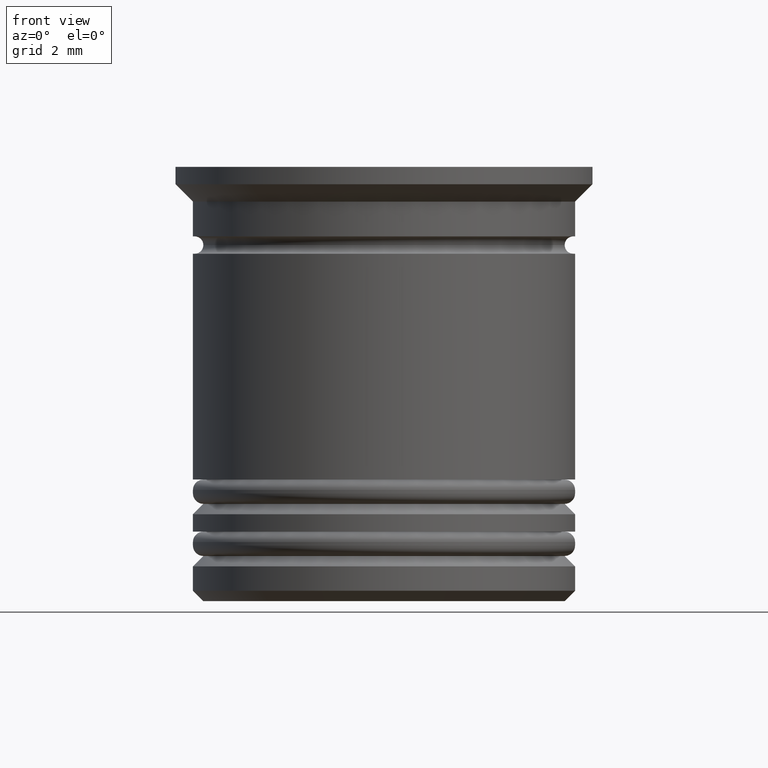
[diagram: clean part render]
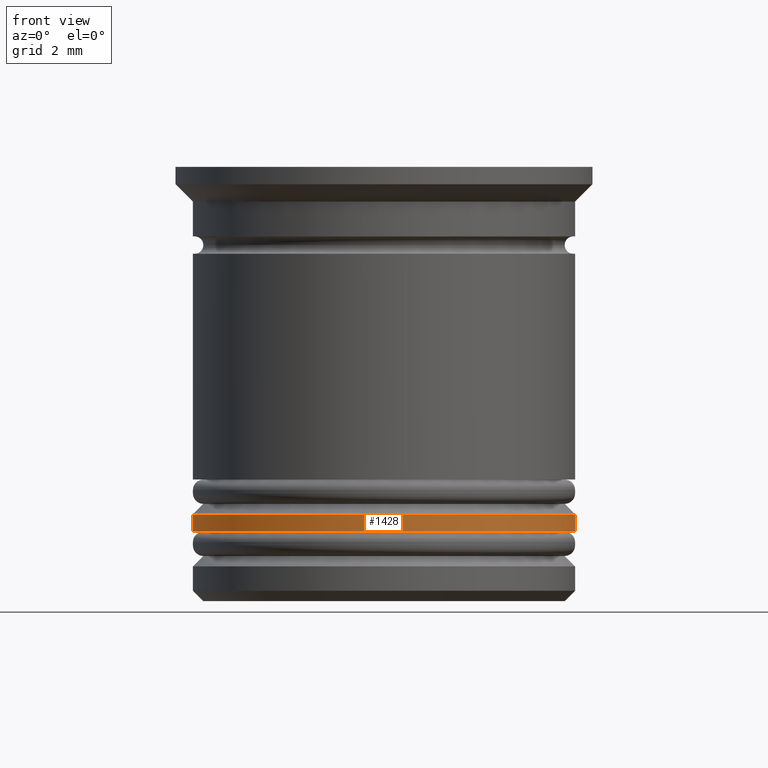
[diagram: same view with one face highlighted and labeled with its STEP entity id]
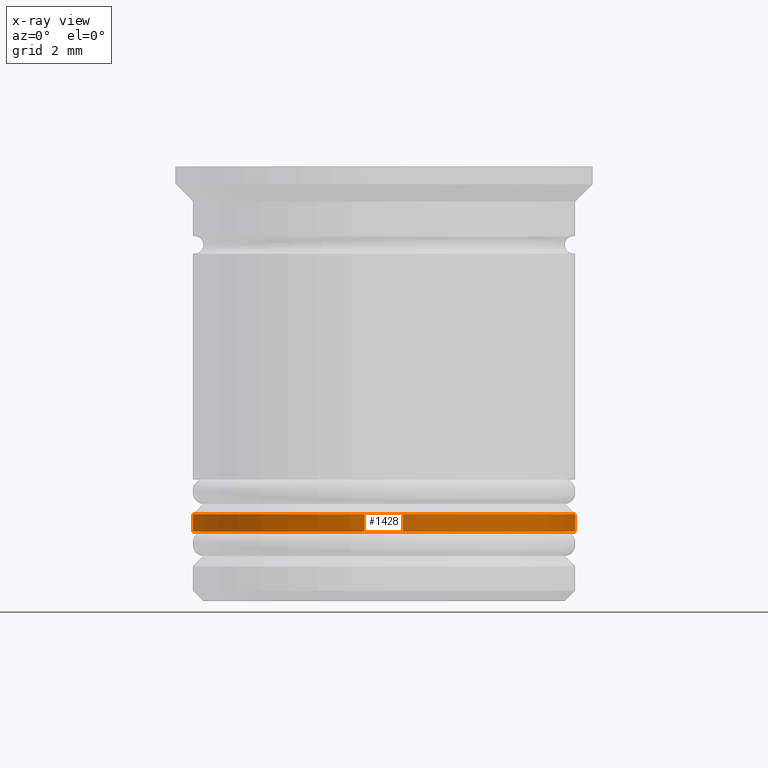
[diagram: x-ray of the same camera — body ghosted, the highlighted face saturated]
A machine part, front view. The second image highlights one B-rep face of the part: STEP entity #1428.
The next image is the same camera in x-ray: the body ghosted, the highlighted face saturated — about 0% of this face is hidden behind the body in this view.
In plain terms, the highlighted cylindrical surface (partial cylindrical patch) has radius 5.5 mm, axis along (-0, -0, 1).
Its self-contained STEP definition (entity closure, byte-faithful):
#35 = VERTEX_POINT ( 'NONE', #1446 ) ;
#86 = DIRECTION ( 'NONE',  ( 1.000000000000000000, 0.000000000000000000, 0.000000000000000000 ) ) ;
#110 = CARTESIAN_POINT ( 'NONE',  ( 0.000000000000000000, 0.000000000000000000, 0.000000000000000000 ) ) ;
#124 = CARTESIAN_POINT ( 'NONE',  ( 0.000000000000000000, 0.000000000000000000, -10.00000000000000533 ) ) ;
#261 = EDGE_CURVE ( 'NONE', #1531, #35, #1693, .T. ) ;
#285 = ORIENTED_EDGE ( 'NONE', *, *, #658, .T. ) ;
#307 = EDGE_CURVE ( 'NONE', #1531, #1418, #1530, .T. ) ;
#308 = ORIENTED_EDGE ( 'NONE', *, *, #261, .F. ) ;
#322 = AXIS2_PLACEMENT_3D ( 'NONE', #1220, #1051, #892 ) ;
#387 = DIRECTION ( 'NONE',  ( -0.000000000000000000, -0.000000000000000000, 1.000000000000000000 ) ) ;
#417 = LINE ( 'NONE', #877, #1232 ) ;
#464 = AXIS2_PLACEMENT_3D ( 'NONE', #110, #387, #86 ) ;
#484 = EDGE_LOOP ( 'NONE', ( #308, #926, #285, #1198 ) ) ;
#525 = DIRECTION ( 'NONE',  ( 0.000000000000000000, 0.000000000000000000, -1.000000000000000000 ) ) ;
#563 = AXIS2_PLACEMENT_3D ( 'NONE', #124, #525, #747 ) ;
#658 = EDGE_CURVE ( 'NONE', #1418, #1245, #417, .T. ) ;
#747 = DIRECTION ( 'NONE',  ( -1.000000000000000000, 0.000000000000000000, 0.000000000000000000 ) ) ;
#778 = CARTESIAN_POINT ( 'NONE',  ( -5.500000000000001776, 6.735557395310443995E-16, -10.50000000000000178 ) ) ;
#856 = FACE_OUTER_BOUND ( 'NONE', #484, .T. ) ;
#877 = CARTESIAN_POINT ( 'NONE',  ( 5.500000000000001776, 0.000000000000000000, 0.000000000000000000 ) ) ;
#882 = CIRCLE ( 'NONE', #563, 5.500000000000001776 ) ;
#892 = DIRECTION ( 'NONE',  ( 1.000000000000000000, 0.000000000000000000, 0.000000000000000000 ) ) ;
#926 = ORIENTED_EDGE ( 'NONE', *, *, #307, .T. ) ;
#1051 = DIRECTION ( 'NONE',  ( -0.000000000000000000, -0.000000000000000000, 1.000000000000000000 ) ) ;
#1198 = ORIENTED_EDGE ( 'NONE', *, *, #1856, .T. ) ;
#1213 = DIRECTION ( 'NONE',  ( -0.000000000000000000, -0.000000000000000000, 1.000000000000000000 ) ) ;
#1220 = CARTESIAN_POINT ( 'NONE',  ( 0.000000000000000000, 0.000000000000000000, -10.50000000000000178 ) ) ;
#1232 = VECTOR ( 'NONE', #1348, 1000.000000000000000 ) ;
#1245 = VERTEX_POINT ( 'NONE', #1979 ) ;
#1320 = CYLINDRICAL_SURFACE ( 'NONE', #464, 5.500000000000001776 ) ;
#1348 = DIRECTION ( 'NONE',  ( -0.000000000000000000, -0.000000000000000000, 1.000000000000000000 ) ) ;
#1418 = VERTEX_POINT ( 'NONE', #1648 ) ;
#1428 = ADVANCED_FACE ( 'NONE', ( #856 ), #1320, .T. ) ;
#1446 = CARTESIAN_POINT ( 'NONE',  ( -5.500000000000001776, 6.735557395310443995E-16, -10.00000000000000533 ) ) ;
#1530 = CIRCLE ( 'NONE', #322, 5.500000000000001776 ) ;
#1531 = VERTEX_POINT ( 'NONE', #778 ) ;
#1648 = CARTESIAN_POINT ( 'NONE',  ( 5.500000000000001776, 0.000000000000000000, -10.50000000000000178 ) ) ;
#1679 = CARTESIAN_POINT ( 'NONE',  ( -5.500000000000001776, 6.735557395310443995E-16, 0.000000000000000000 ) ) ;
#1693 = LINE ( 'NONE', #1679, #1963 ) ;
#1856 = EDGE_CURVE ( 'NONE', #1245, #35, #882, .T. ) ;
#1963 = VECTOR ( 'NONE', #1213, 1000.000000000000000 ) ;
#1979 = CARTESIAN_POINT ( 'NONE',  ( 5.500000000000001776, 0.000000000000000000, -10.00000000000000533 ) ) ;